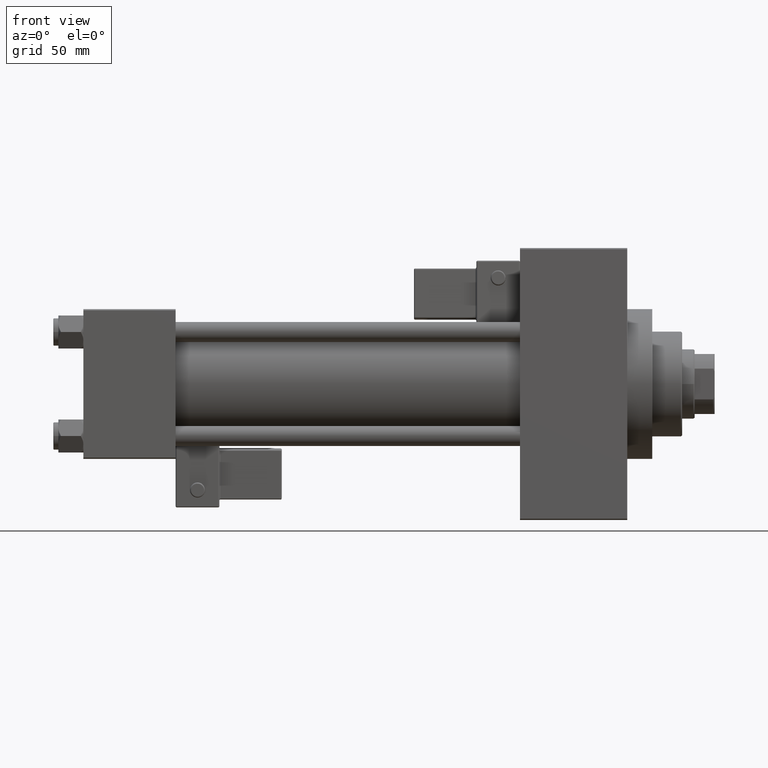
[diagram: clean part render]
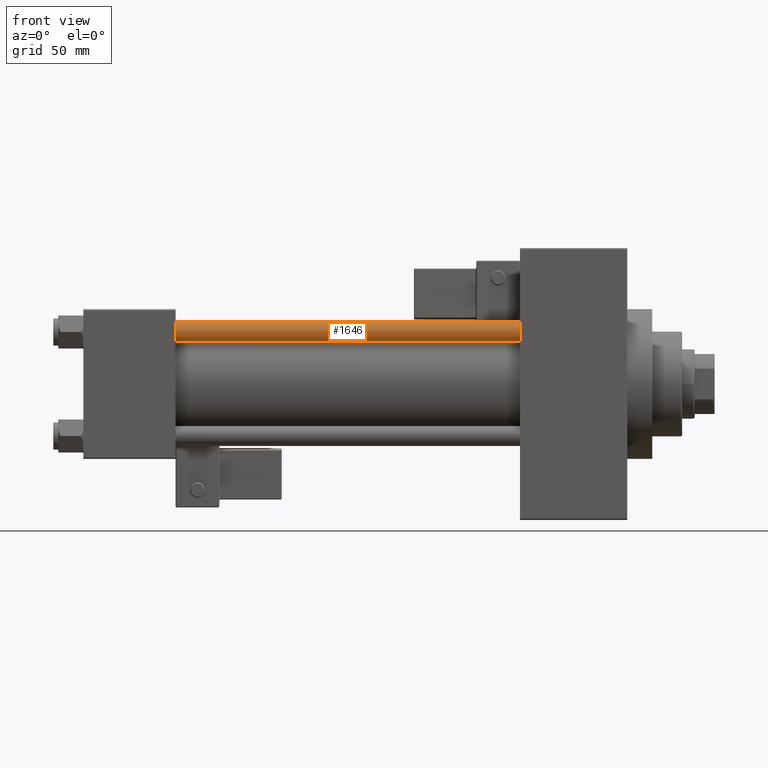
[diagram: same view with one face highlighted and labeled with its STEP entity id]
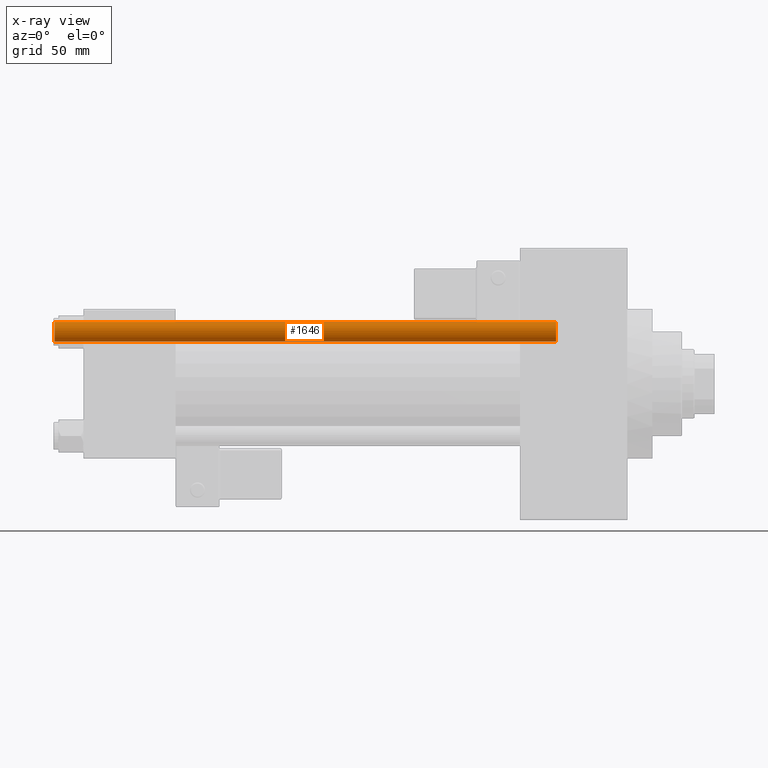
[diagram: x-ray of the same camera — body ghosted, the highlighted face saturated]
A machine part, front view. The second image highlights one B-rep face of the part: STEP entity #1646.
The next image is the same camera in x-ray: the body ghosted, the highlighted face saturated — about 0% of this face is hidden behind the body in this view.
In plain terms, the highlighted cylindrical surface (edge-blend (fillet) strip) has radius 4 mm, axis along (1, 0, 0).
Its self-contained STEP definition (entity closure, byte-faithful):
#822 = CARTESIAN_POINT ( 'NONE',  ( 4.000000000000000000, 4.898587196589412829E-16, 202.0000000000000000 ) ) ;
#1646 = ADVANCED_FACE ( 'NONE', ( #26175 ), #10613, .T. ) ;
#1717 = ORIENTED_EDGE ( 'NONE', *, *, #12764, .T. ) ;
#2150 = VERTEX_POINT ( 'NONE', #4002 ) ;
#2152 = CARTESIAN_POINT ( 'NONE',  ( 0.000000000000000000, 0.000000000000000000, 201.5000000000000000 ) ) ;
#2650 = EDGE_LOOP ( 'NONE', ( #24246, #38066, #1717, #20091 ) ) ;
#3572 = DIRECTION ( 'NONE',  ( -1.000000000000000000, 0.000000000000000000, 0.000000000000000000 ) ) ;
#4002 = CARTESIAN_POINT ( 'NONE',  ( -4.000000000000000000, 0.000000000000000000, 0.5000000000000004441 ) ) ;
#4759 = EDGE_CURVE ( 'NONE', #14264, #28580, #8119, .T. ) ;
#5752 = EDGE_CURVE ( 'NONE', #9316, #14264, #7913, .T. ) ;
#5788 = DIRECTION ( 'NONE',  ( -0.000000000000000000, -0.000000000000000000, -1.000000000000000000 ) ) ;
#7179 = CARTESIAN_POINT ( 'NONE',  ( 0.000000000000000000, 0.000000000000000000, 0.5000000000000004441 ) ) ;
#7913 = CIRCLE ( 'NONE', #48093, 4.000000000000000000 ) ;
#8119 = LINE ( 'NONE', #822, #24873 ) ;
#8713 = AXIS2_PLACEMENT_3D ( 'NONE', #25937, #26421, #3572 ) ;
#8991 = CIRCLE ( 'NONE', #37107, 4.000000000000000000 ) ;
#9316 = VERTEX_POINT ( 'NONE', #46212 ) ;
#10613 = CYLINDRICAL_SURFACE ( 'NONE', #8713, 4.000000000000000000 ) ;
#12764 = EDGE_CURVE ( 'NONE', #28580, #2150, #8991, .T. ) ;
#13965 = DIRECTION ( 'NONE',  ( 0.000000000000000000, 0.000000000000000000, -1.000000000000000000 ) ) ;
#14264 = VERTEX_POINT ( 'NONE', #23328 ) ;
#15029 = CARTESIAN_POINT ( 'NONE',  ( 4.000000000000000000, 4.898587196589412829E-16, 0.5000000000000004441 ) ) ;
#15915 = DIRECTION ( 'NONE',  ( -0.000000000000000000, -0.000000000000000000, -1.000000000000000000 ) ) ;
#17842 = LINE ( 'NONE', #32422, #39557 ) ;
#19180 = EDGE_CURVE ( 'NONE', #9316, #2150, #17842, .T. ) ;
#20091 = ORIENTED_EDGE ( 'NONE', *, *, #19180, .F. ) ;
#23328 = CARTESIAN_POINT ( 'NONE',  ( 4.000000000000000000, 4.898587196589412829E-16, 201.5000000000000000 ) ) ;
#24246 = ORIENTED_EDGE ( 'NONE', *, *, #5752, .T. ) ;
#24873 = VECTOR ( 'NONE', #15915, 1000.000000000000000 ) ;
#25937 = CARTESIAN_POINT ( 'NONE',  ( 0.000000000000000000, 0.000000000000000000, 202.0000000000000000 ) ) ;
#26175 = FACE_OUTER_BOUND ( 'NONE', #2650, .T. ) ;
#26421 = DIRECTION ( 'NONE',  ( -0.000000000000000000, -0.000000000000000000, -1.000000000000000000 ) ) ;
#28580 = VERTEX_POINT ( 'NONE', #15029 ) ;
#32422 = CARTESIAN_POINT ( 'NONE',  ( -4.000000000000000000, 0.000000000000000000, 202.0000000000000000 ) ) ;
#33054 = DIRECTION ( 'NONE',  ( 1.000000000000000000, 0.000000000000000000, 0.000000000000000000 ) ) ;
#37107 = AXIS2_PLACEMENT_3D ( 'NONE', #7179, #45155, #37843 ) ;
#37843 = DIRECTION ( 'NONE',  ( 1.000000000000000000, 0.000000000000000000, 0.000000000000000000 ) ) ;
#38066 = ORIENTED_EDGE ( 'NONE', *, *, #4759, .T. ) ;
#39557 = VECTOR ( 'NONE', #5788, 1000.000000000000000 ) ;
#45155 = DIRECTION ( 'NONE',  ( -0.000000000000000000, -0.000000000000000000, 1.000000000000000000 ) ) ;
#46212 = CARTESIAN_POINT ( 'NONE',  ( -4.000000000000000000, 0.000000000000000000, 201.5000000000000000 ) ) ;
#48093 = AXIS2_PLACEMENT_3D ( 'NONE', #2152, #13965, #33054 ) ;